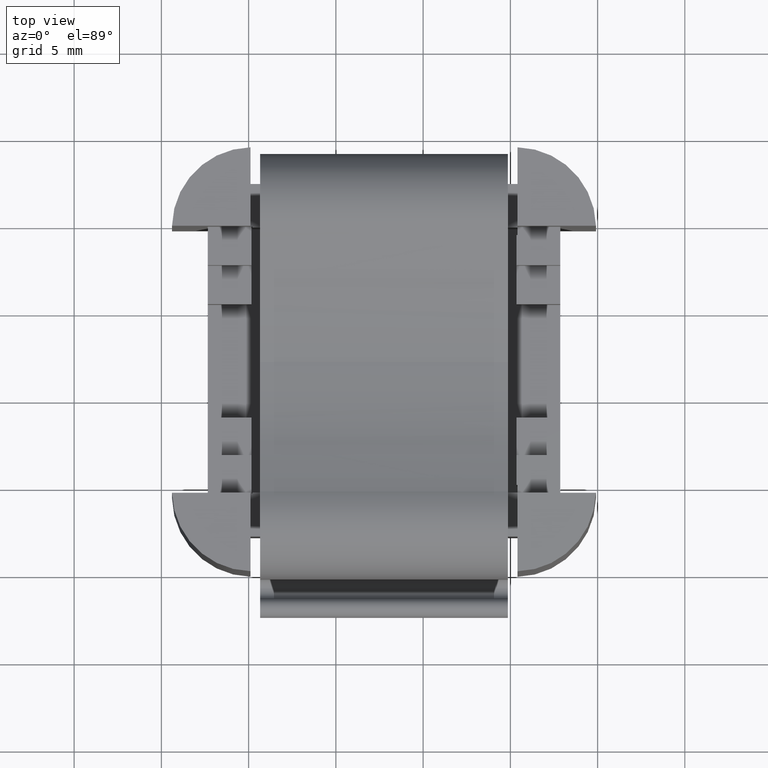
[diagram: clean part render]
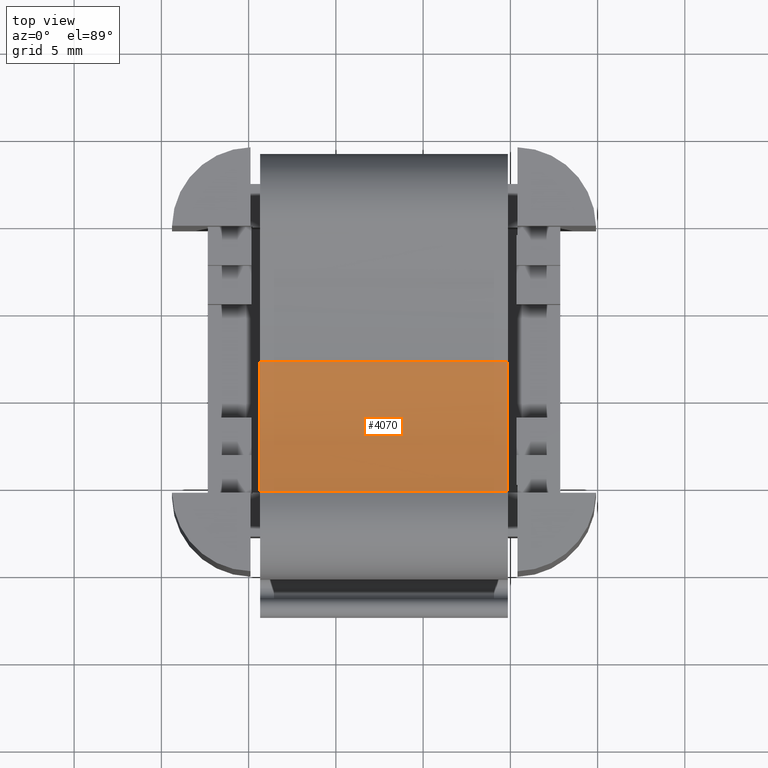
[diagram: same view with one face highlighted and labeled with its STEP entity id]
A machine part, top view. The second image highlights one B-rep face of the part: STEP entity #4070.
In plain terms, the highlighted face is a freeform B-spline surface patch.
Its self-contained STEP definition (entity closure, byte-faithful):
#649 = VECTOR ( 'NONE', #2156, 1000.000000000000000 ) ;
#847 = VECTOR ( 'NONE', #2756, 1000.000000000000000 ) ;
#1356 = CARTESIAN_POINT ( 'NONE',  ( 0.6567730133780413900, 6.167804274376072400, 19.87397734287540600 ) ) ;
#1357 = CARTESIAN_POINT ( 'NONE',  ( 14.85677301337714500, 9.938571096040744700, 19.02506409092275400 ) ) ;
#1359 = CARTESIAN_POINT ( 'NONE',  ( 0.6567730133770496300, 10.40592454845367200, 18.98927327377515100 ) ) ;
#1361 = CARTESIAN_POINT ( 'NONE',  ( 0.6567730133776884500, 7.668940736114971700, 19.40702030395536000 ) ) ;
#1362 = CARTESIAN_POINT ( 'NONE',  ( 0.6567730133774644100, 8.607817620571644600, 19.19494110775363500 ) ) ;
#1363 = CARTESIAN_POINT ( 'NONE',  ( 0.6567730133783409300, 4.865377419655610300, 20.36711339725233600 ) ) ;
#1364 = CARTESIAN_POINT ( 'NONE',  ( 14.85677301337704000, 10.40592454845698700, 18.98927327377515100 ) ) ;
#1365 = CARTESIAN_POINT ( 'NONE',  ( 14.85677301337745800, 8.607817620574959200, 19.19494110775363500 ) ) ;
#1366 = CARTESIAN_POINT ( 'NONE',  ( 0.6567730133766747100, 12.01836745869051600, 18.90638272372489900 ) ) ;
#1367 = CARTESIAN_POINT ( 'NONE',  ( 14.85677301337803300, 6.167804274379386200, 19.87397734287540600 ) ) ;
#1368 = CARTESIAN_POINT ( 'NONE',  ( 14.85677301337666600, 12.01836745869383100, 18.90638272372489900 ) ) ;
#1369 = FACE_OUTER_BOUND ( 'NONE', #3807, .T. ) ;
#1370 = CARTESIAN_POINT ( 'NONE',  ( 14.85677301337675300, 11.63366079238520000, 18.92299207839557700 ) ) ;
#1371 = CARTESIAN_POINT ( 'NONE',  ( 14.85677301337761900, 7.931373880913248800, 19.34071502547166700 ) ) ;
#1373 = CARTESIAN_POINT ( 'NONE',  ( 0.6567730133782631000, 5.195052671076244800, 20.23940463865344700 ) ) ;
#1375 = CARTESIAN_POINT ( 'NONE',  ( 14.85677301337735500, 9.038263014262261300, 19.12815011338954500 ) ) ;
#1377 = CARTESIAN_POINT ( 'NONE',  ( 0.6567730133767600800, 11.63366079238188500, 18.92299207839557700 ) ) ;
#1378 = CARTESIAN_POINT ( 'NONE',  ( 14.85677301337768200, 7.668940736118286400, 19.40702030395536000 ) ) ;
#1384 = CARTESIAN_POINT ( 'NONE',  ( 0.6567730133776272800, 7.931373880909934100, 19.34071502547166700 ) ) ;
#1385 = CARTESIAN_POINT ( 'NONE',  ( 0.6567730133778879600, 6.794632462353424000, 19.65443445478661700 ) ) ;
#1390 = CARTESIAN_POINT ( 'NONE',  ( 0.6567730133784117600, 4.568985666303309900, 20.48196200850126700 ) ) ;
#1393 = CARTESIAN_POINT ( 'NONE',  ( 14.85677301337788100, 6.794632462356737800, 19.65443445478661700 ) ) ;
#1395 = CARTESIAN_POINT ( 'NONE',  ( 0.6567730133768457900, 11.25658208156400000, 18.93987023199110500 ) ) ;
#1396 = CARTESIAN_POINT ( 'NONE',  ( 14.85677301337840500, 4.568985666306623700, 20.48196200850126700 ) ) ;
#1398 = CARTESIAN_POINT ( 'NONE',  ( 14.85677301337825500, 5.195052671079558600, 20.23940463865344700 ) ) ;
#1399 = CARTESIAN_POINT ( 'NONE',  ( 0.6567730133773631600, 9.038263014258946600, 19.12815011338954500 ) ) ;
#1401 = CARTESIAN_POINT ( 'NONE',  ( 0.6567730133771524400, 9.938571096037430100, 19.02506409092275400 ) ) ;
#1402 = CARTESIAN_POINT ( 'NONE',  ( 14.85677301337683800, 11.25658208156731500, 18.93987023199110500 ) ) ;
#1410 = CARTESIAN_POINT ( 'NONE',  ( 14.85677301337833400, 4.865377419658924100, 20.36711339725233600 ) ) ;
#1650 = B_SPLINE_CURVE_WITH_KNOTS ( 'NONE', 3,
 ( #2197, #2201, #2211, #2172, #2213, #2169, #2182, #2203, #2204, #2166, #2180, #2168, #2193, #2199 ),
 .UNSPECIFIED., .F., .F.,
 ( 4, 2, 2, 2, 2, 2, 4 ),
 ( 0.0000000000000000000, 1.072232776561036000, 3.216698329683108000, 4.154372927596950800, 5.662681964847657000, 7.170991002098363200, 8.323304406583416100 ),
 .UNSPECIFIED. ) ;
#1661 = B_SPLINE_CURVE_WITH_KNOTS ( 'NONE', 3,
 ( #1992, #2001, #2016, #1990, #2025, #1998, #2028, #1993, #1994, #2005 ),
 .UNSPECIFIED., .F., .F.,
 ( 4, 2, 2, 2, 4 ),
 ( 0.0000000000000000000, 0.001919204282540833500, 0.003838408565081667000, 0.005757612847622500500, 0.007676817130163333900 ),
 .UNSPECIFIED. ) ;
#1883 = CARTESIAN_POINT ( 'NONE',  ( 14.85677301337667800, 12.01836745869384300, 18.90638272372490300 ) ) ;
#1937 = CARTESIAN_POINT ( 'NONE',  ( 14.85677301337841900, 4.568985666306621100, 20.48196200850127000 ) ) ;
#1941 = CARTESIAN_POINT ( 'NONE',  ( 0.6567730133766772600, 12.01836745869051400, 18.90638272372490300 ) ) ;
#1987 = CARTESIAN_POINT ( 'NONE',  ( 0.6567730133784144300, 4.568985666303308200, 20.48196200850127000 ) ) ;
#1990 = CARTESIAN_POINT ( 'NONE',  ( 0.6567730133778521000, 6.971725135721441400, 19.60155777287227600 ) ) ;
#1992 = CARTESIAN_POINT ( 'NONE',  ( 0.6567730133784144300, 4.568985666303308200, 20.48196200850127000 ) ) ;
#1993 = CARTESIAN_POINT ( 'NONE',  ( 0.6567730133769724700, 10.74208198980286600, 18.96259086163726700 ) ) ;
#1994 = CARTESIAN_POINT ( 'NONE',  ( 0.6567730133768332500, 11.38017585799853700, 18.93393605610005900 ) ) ;
#1998 = CARTESIAN_POINT ( 'NONE',  ( 0.6567730133774174500, 8.834097666878211200, 19.14730868795489000 ) ) ;
#2001 = CARTESIAN_POINT ( 'NONE',  ( 0.6567730133782750900, 5.165566208511486400, 20.25079347565311500 ) ) ;
#2005 = CARTESIAN_POINT ( 'NONE',  ( 0.6567730133766772600, 12.01836745869051400, 18.90638272372490300 ) ) ;
#2016 = CARTESIAN_POINT ( 'NONE',  ( 0.6567730133781346500, 5.762172501210058900, 20.01969438001356500 ) ) ;
#2025 = CARTESIAN_POINT ( 'NONE',  ( 0.6567730133777093200, 7.583229163173300000, 19.41464140964756200 ) ) ;
#2028 = CARTESIAN_POINT ( 'NONE',  ( 0.6567730133772691200, 9.470266377831663400, 19.06917556433087300 ) ) ;
#2116 = LINE ( 'NONE', #2144, #649 ) ;
#2144 = CARTESIAN_POINT ( 'NONE',  ( 0.1567730133766839000, 12.01836745869040100, 18.90638272372490300 ) ) ;
#2156 = DIRECTION ( 'NONE',  ( 1.000000000000000000, 2.334185942430046700E-013, -1.378492127825591700E-018 ) ) ;
#2166 = CARTESIAN_POINT ( 'NONE',  ( 14.85677301337716800, 9.938571096040751800, 19.02506409092275400 ) ) ;
#2168 = CARTESIAN_POINT ( 'NONE',  ( 14.85677301337685700, 11.25658208156732000, 18.93987023199110800 ) ) ;
#2169 = CARTESIAN_POINT ( 'NONE',  ( 14.85677301337769900, 7.668940736118298900, 19.40702030395535600 ) ) ;
#2172 = CARTESIAN_POINT ( 'NONE',  ( 14.85677301337804600, 6.167804274379387100, 19.87397734287540300 ) ) ;
#2180 = CARTESIAN_POINT ( 'NONE',  ( 14.85677301337705800, 10.40592454845699200, 18.98927327377515100 ) ) ;
#2182 = CARTESIAN_POINT ( 'NONE',  ( 14.85677301337763200, 7.931373880913254100, 19.34071502547167000 ) ) ;
#2193 = CARTESIAN_POINT ( 'NONE',  ( 14.85677301337676900, 11.63366079238521200, 18.92299207839557700 ) ) ;
#2197 = CARTESIAN_POINT ( 'NONE',  ( 14.85677301337841900, 4.568985666306621100, 20.48196200850127000 ) ) ;
#2199 = CARTESIAN_POINT ( 'NONE',  ( 14.85677301337667800, 12.01836745869384300, 18.90638272372490300 ) ) ;
#2201 = CARTESIAN_POINT ( 'NONE',  ( 14.85677301337835300, 4.865377419658923200, 20.36711339725233600 ) ) ;
#2203 = CARTESIAN_POINT ( 'NONE',  ( 14.85677301337747600, 8.607817620574957500, 19.19494110775363200 ) ) ;
#2204 = CARTESIAN_POINT ( 'NONE',  ( 14.85677301337737400, 9.038263014262268400, 19.12815011338954500 ) ) ;
#2211 = CARTESIAN_POINT ( 'NONE',  ( 14.85677301337827300, 5.195052671079558600, 20.23940463865345100 ) ) ;
#2213 = CARTESIAN_POINT ( 'NONE',  ( 14.85677301337790000, 6.794632462356731600, 19.65443445478662100 ) ) ;
#2573 = ORIENTED_EDGE ( 'NONE', *, *, #3885, .F. ) ;
#2755 = CARTESIAN_POINT ( 'NONE',  ( 0.1567730133784210100, 4.568985666303192700, 20.48196200850127400 ) ) ;
#2756 = DIRECTION ( 'NONE',  ( 1.000000000000000000, 2.334185942430046700E-013, -1.378492127825591700E-018 ) ) ;
#2772 = LINE ( 'NONE', #2755, #847 ) ;
#3148 = ORIENTED_EDGE ( 'NONE', *, *, #3917, .T. ) ;
#3154 = ORIENTED_EDGE ( 'NONE', *, *, #3853, .F. ) ;
#3179 = ORIENTED_EDGE ( 'NONE', *, *, #4150, .T. ) ;
#3623 = VERTEX_POINT ( 'NONE', #1937 ) ;
#3649 = VERTEX_POINT ( 'NONE', #1883 ) ;
#3694 = VERTEX_POINT ( 'NONE', #1987 ) ;
#3700 = VERTEX_POINT ( 'NONE', #1941 ) ;
#3807 = EDGE_LOOP ( 'NONE', ( #3148, #2573, #3154, #3179 ) ) ;
#3840 = B_SPLINE_SURFACE_WITH_KNOTS ( 'NONE', 3, 1, ( 
 ( #1390, #1396 ),
 ( #1363, #1410 ),
 ( #1373, #1398 ),
 ( #1356, #1367 ),
 ( #1385, #1393 ),
 ( #1361, #1378 ),
 ( #1384, #1371 ),
 ( #1362, #1365 ),
 ( #1399, #1375 ),
 ( #1401, #1357 ),
 ( #1359, #1364 ),
 ( #1395, #1402 ),
 ( #1377, #1370 ),
 ( #1366, #1368 ) ),
 .UNSPECIFIED., .F., .F., .F.,
 ( 4, 2, 2, 2, 2, 2, 4 ),
 ( 2, 2 ),
 ( 0.0000000000000000000, 1.072232776561036000, 3.216698329683108000, 4.154372927596950800, 5.662681964847657000, 7.170991002098363200, 8.323304406583416100 ),
 ( 0.0000000000000000000, 1.000000000000000000 ),
 .UNSPECIFIED. ) ;
#3853 = EDGE_CURVE ( 'NONE', #3694, #3700, #1661, .T. ) ;
#3885 = EDGE_CURVE ( 'NONE', #3700, #3649, #2116, .T. ) ;
#3917 = EDGE_CURVE ( 'NONE', #3623, #3649, #1650, .T. ) ;
#4070 = ADVANCED_FACE ( 'NONE', ( #1369 ), #3840, .F. ) ;
#4150 = EDGE_CURVE ( 'NONE', #3694, #3623, #2772, .T. ) ;